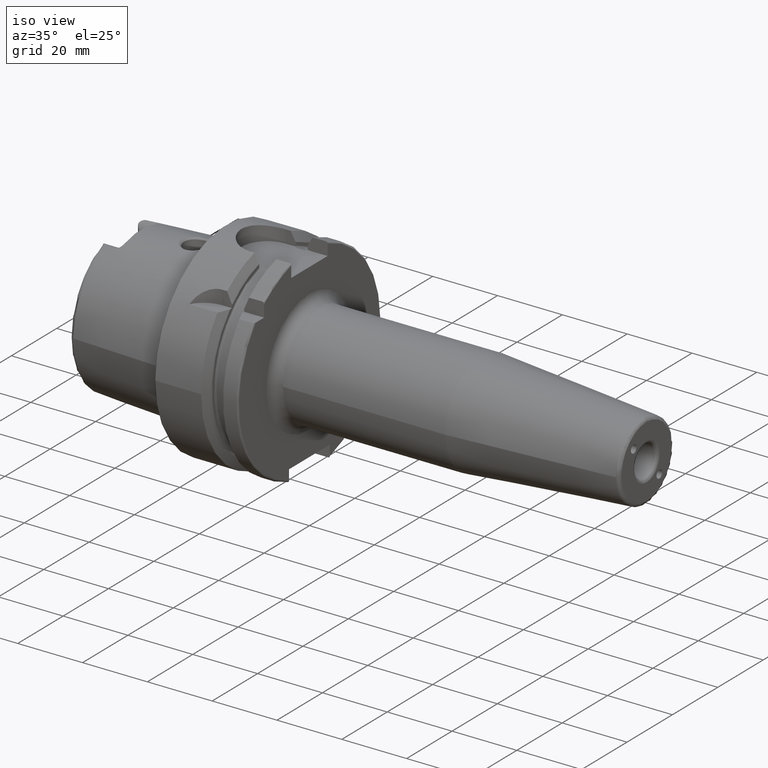
[diagram: clean part render]
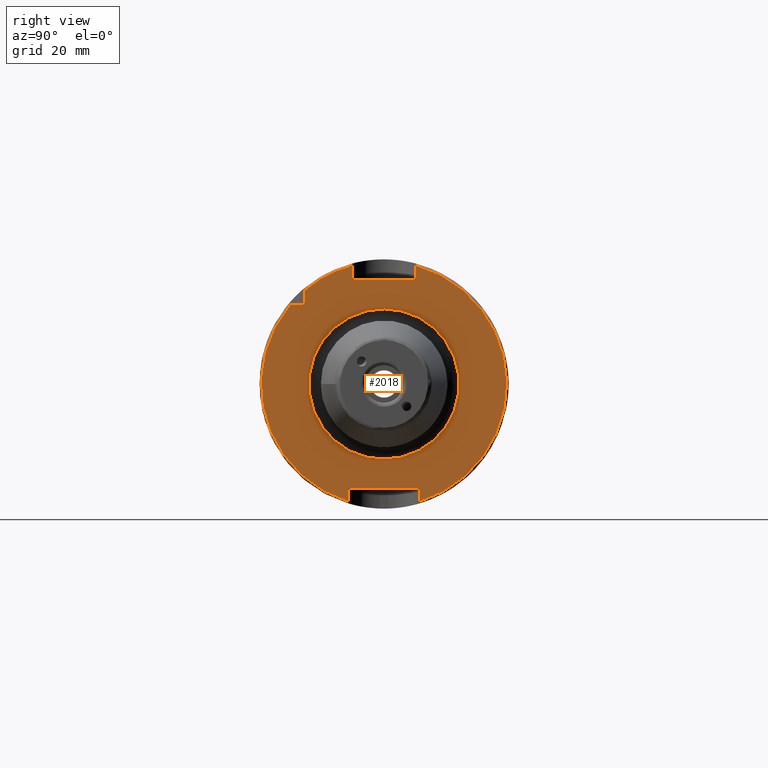
[diagram: tour spotlight — one face highlighted and labeled with its STEP entity id]
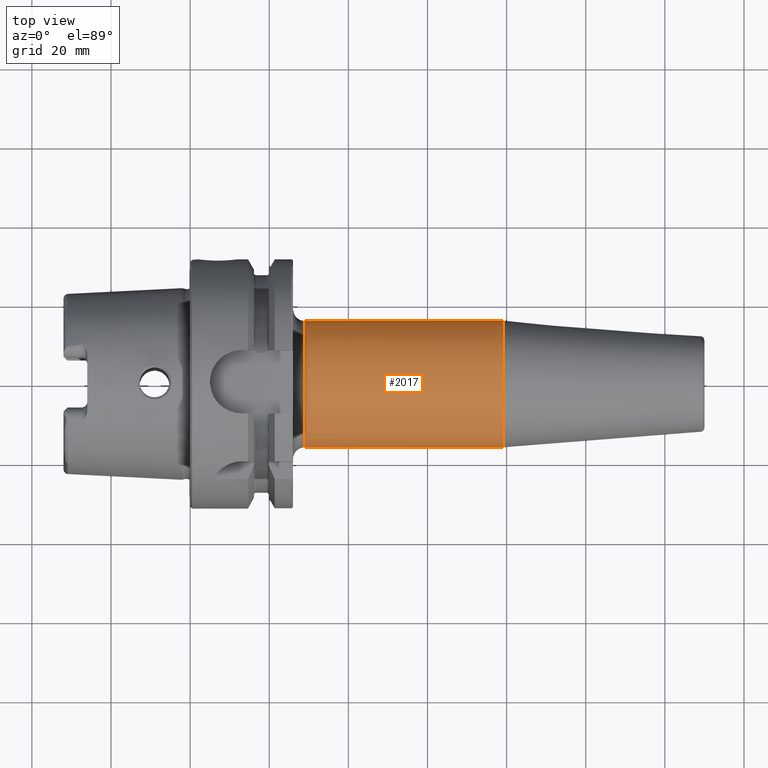
[diagram: tour spotlight — one face highlighted and labeled with its STEP entity id]
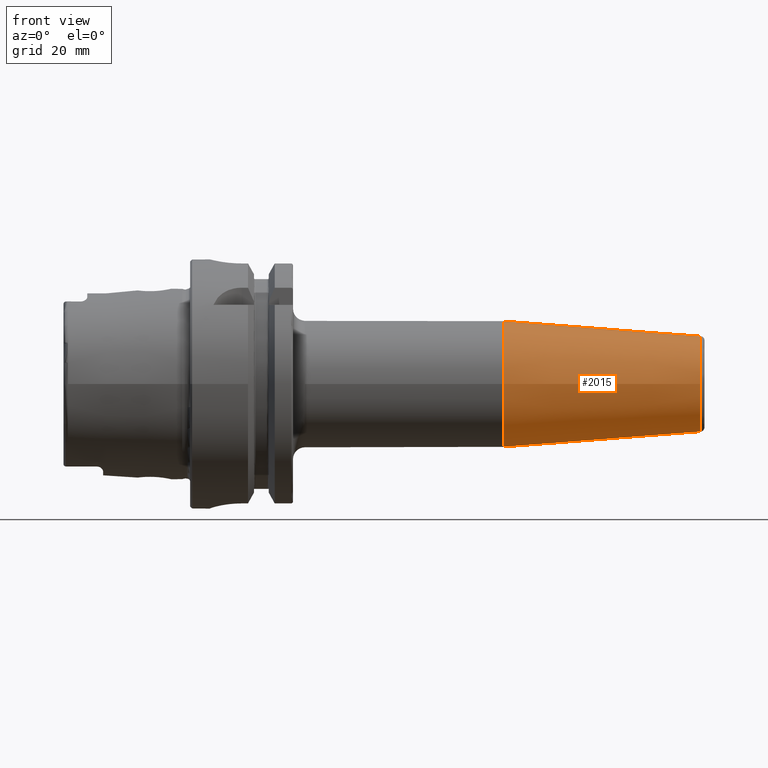
[diagram: tour spotlight — one face highlighted and labeled with its STEP entity id]
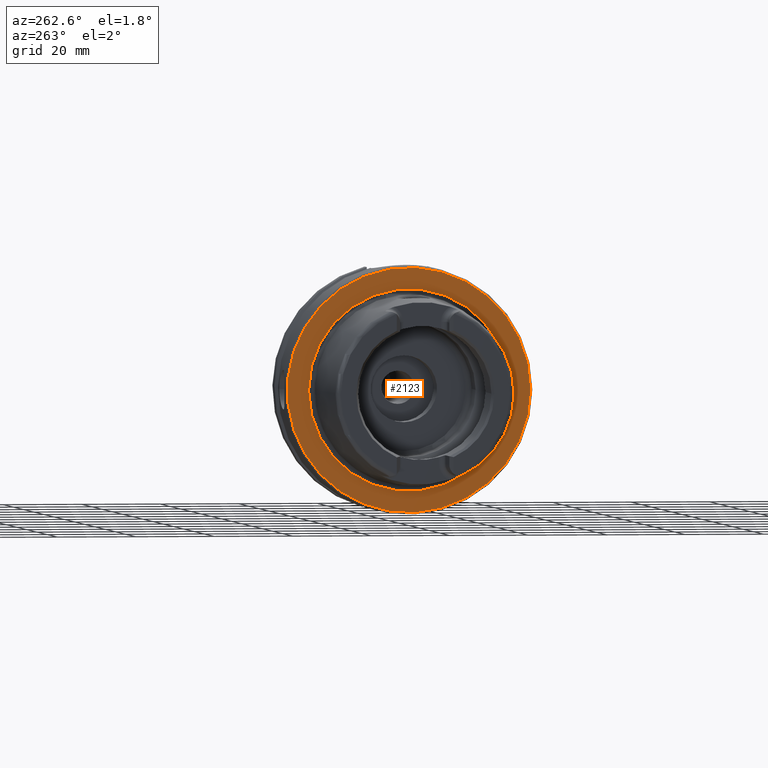
[diagram: tour spotlight — one face highlighted and labeled with its STEP entity id]
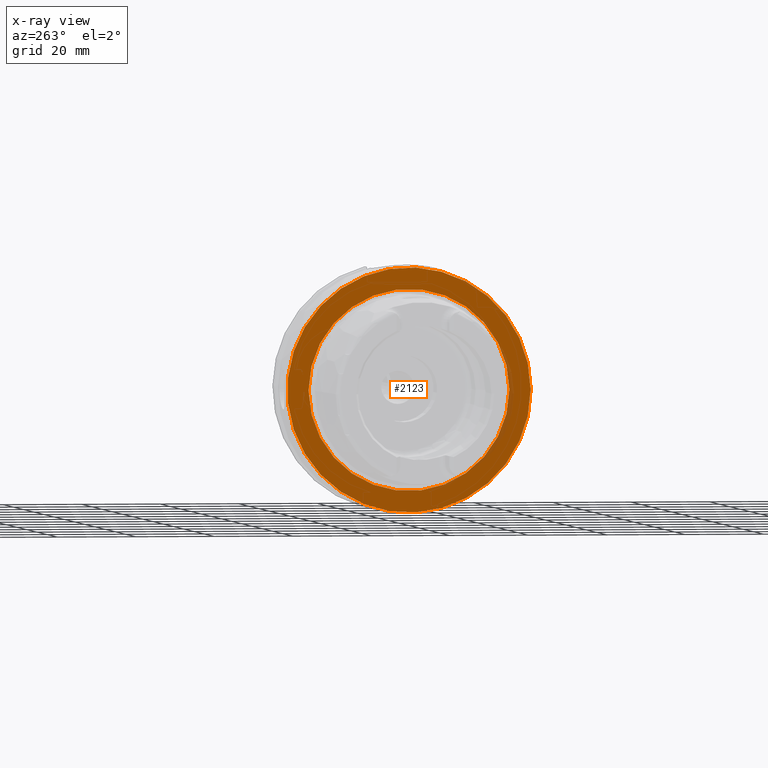
[diagram: x-ray of the same camera — body ghosted, this tour face saturated]
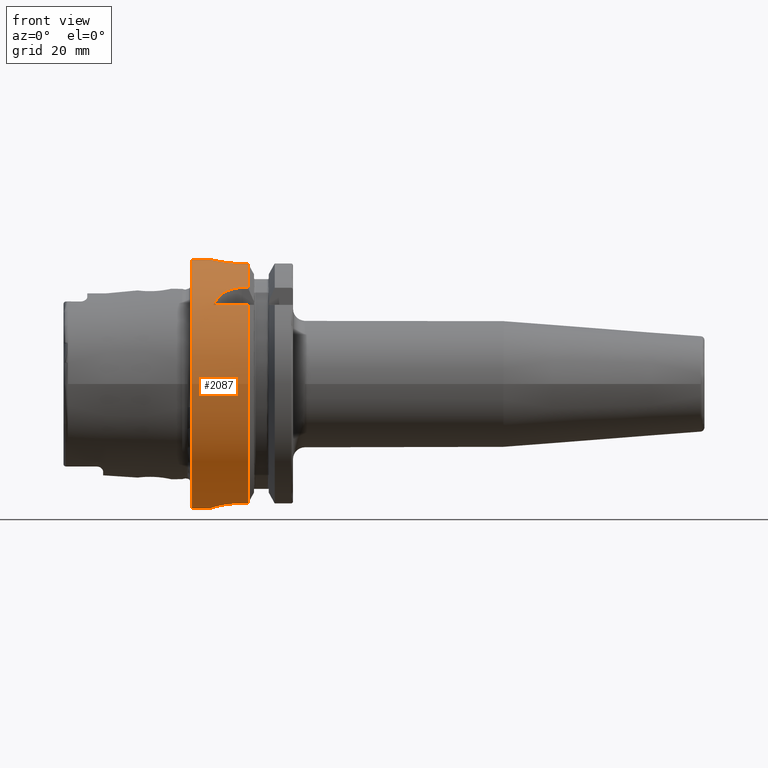
[diagram: tour spotlight — one face highlighted and labeled with its STEP entity id]
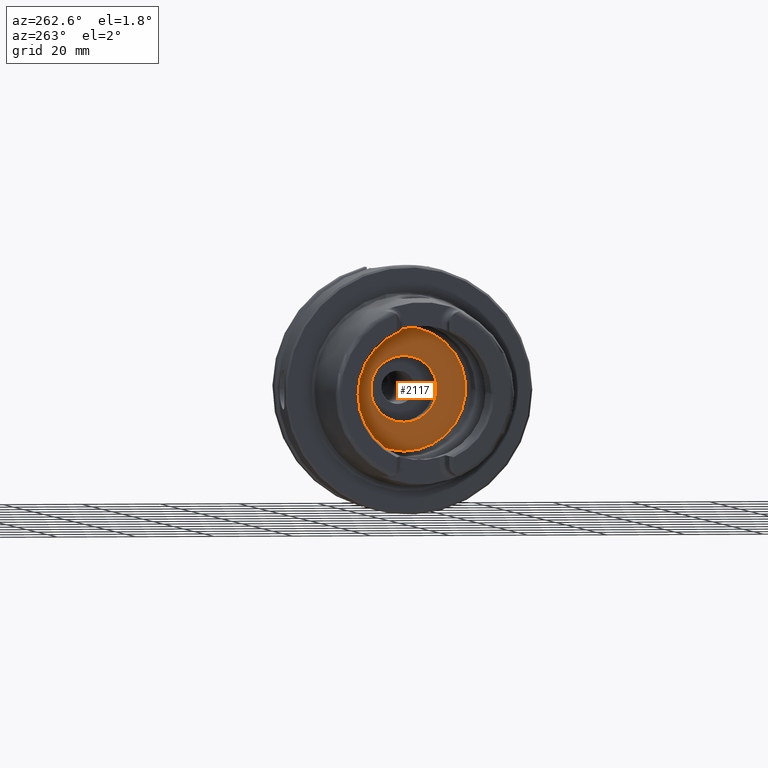
[diagram: tour spotlight — one face highlighted and labeled with its STEP entity id]
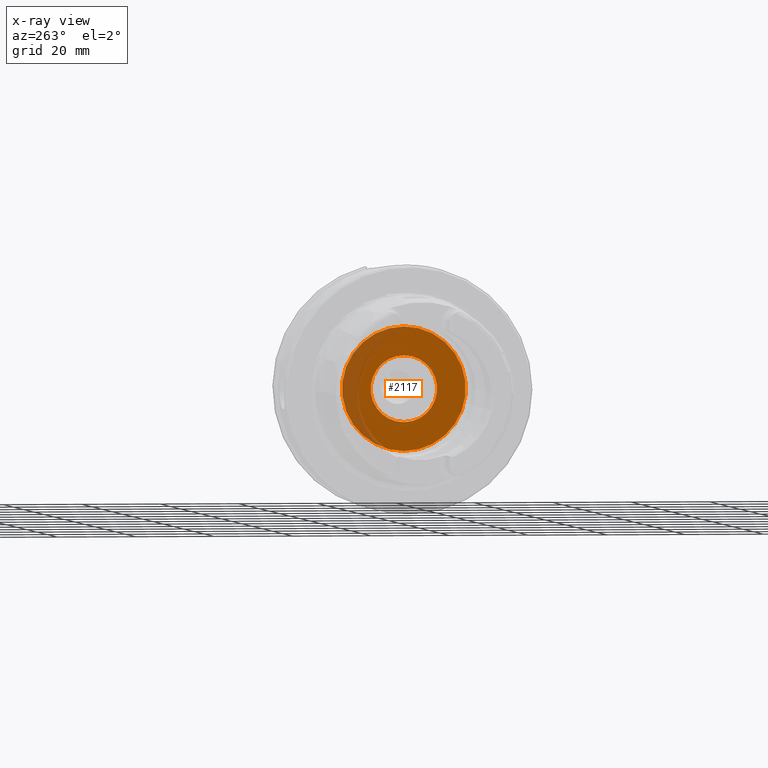
[diagram: x-ray of the same camera — body ghosted, this tour face saturated]
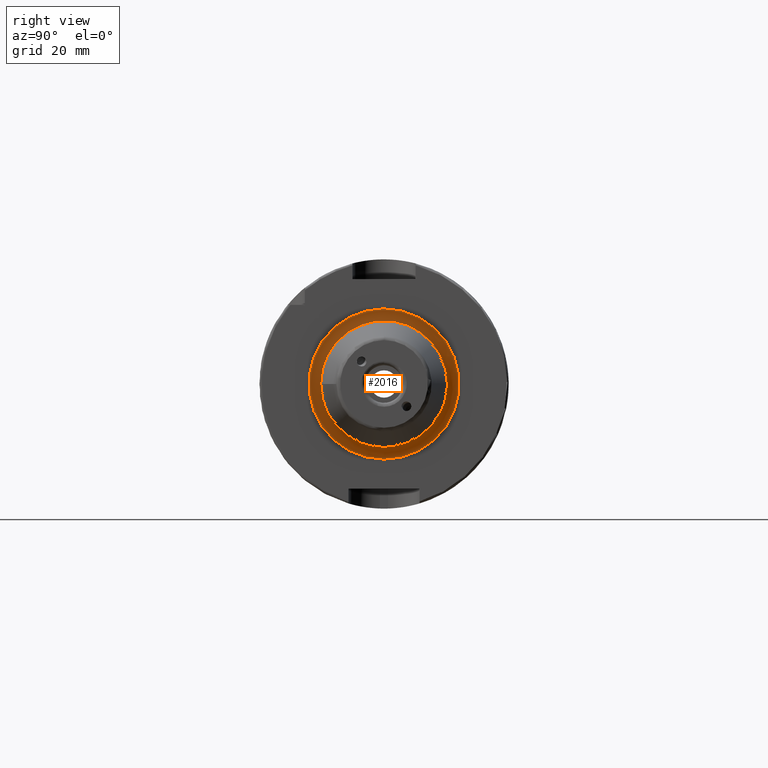
[diagram: tour spotlight — one face highlighted and labeled with its STEP entity id]
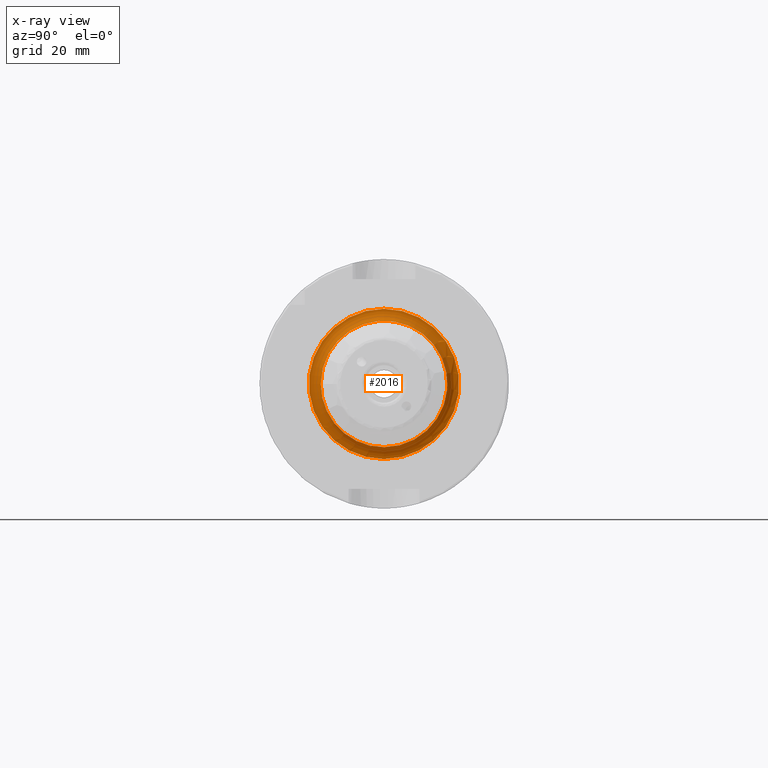
[diagram: x-ray of the same camera — body ghosted, this tour face saturated]
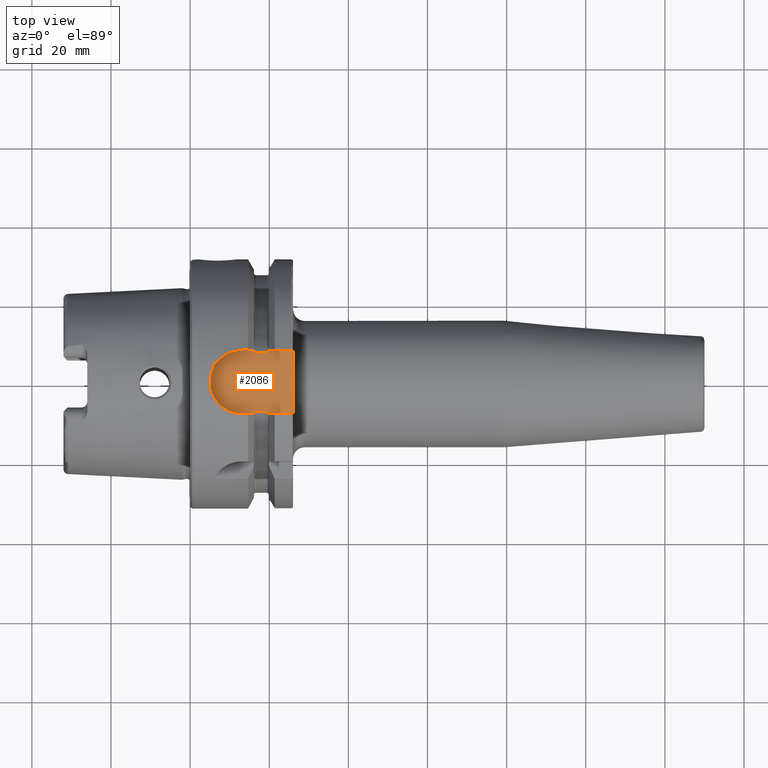
[diagram: tour spotlight — one face highlighted and labeled with its STEP entity id]
A machine part: a face-by-face anatomy tour. The part has 121 B-rep faces; the first image is the clean iso view, then the 8 largest visible faces are spotlighted one at a time (largest first), each with its STEP entity span.

Face 1 — right view, entity #2018. In plain terms, the highlighted planar face has unit normal (1, 0, 0).
Definition (entity closure, byte-faithful):
#92=FACE_BOUND('',#350,.T.);
#103=PLANE('',#2180);
#225=FACE_OUTER_BOUND('',#349,.T.);
#349=EDGE_LOOP('',(#1396,#1397,#1398,#1399,#1400,#1401,#1402,#1403,#1404,
#1405,#1406));
#350=EDGE_LOOP('',(#1407));
#476=LINE('',#3094,#586);
#477=LINE('',#3098,#587);
#478=LINE('',#3100,#588);
#479=LINE('',#3102,#589);
#480=LINE('',#3106,#590);
#481=LINE('',#3108,#591);
#482=LINE('',#3110,#592);
#483=LINE('',#3113,#593);
#586=VECTOR('',#2478,10.);
#587=VECTOR('',#2481,10.);
#588=VECTOR('',#2482,10.);
#589=VECTOR('',#2483,10.);
#590=VECTOR('',#2486,10.);
#591=VECTOR('',#2487,10.);
#592=VECTOR('',#2488,10.);
#593=VECTOR('',#2491,10.);
#703=CIRCLE('',#2177,19.);
#705=CIRCLE('',#2181,31.);
#706=CIRCLE('',#2182,31.);
#707=CIRCLE('',#2183,31.);
#834=VERTEX_POINT('',#3085);
#835=VERTEX_POINT('',#3092);
#836=VERTEX_POINT('',#3093);
#837=VERTEX_POINT('',#3095);
#838=VERTEX_POINT('',#3097);
#839=VERTEX_POINT('',#3099);
#840=VERTEX_POINT('',#3101);
#841=VERTEX_POINT('',#3103);
#842=VERTEX_POINT('',#3105);
#843=VERTEX_POINT('',#3107);
#844=VERTEX_POINT('',#3109);
#845=VERTEX_POINT('',#3111);
#1049=EDGE_CURVE('',#834,#834,#703,.T.);
#1052=EDGE_CURVE('',#835,#836,#476,.T.);
#1053=EDGE_CURVE('',#836,#837,#705,.T.);
#1054=EDGE_CURVE('',#837,#838,#477,.T.);
#1055=EDGE_CURVE('',#838,#839,#478,.T.);
#1056=EDGE_CURVE('',#839,#840,#479,.T.);
#1057=EDGE_CURVE('',#840,#841,#706,.T.);
#1058=EDGE_CURVE('',#841,#842,#480,.T.);
#1059=EDGE_CURVE('',#842,#843,#481,.T.);
#1060=EDGE_CURVE('',#843,#844,#482,.T.);
#1061=EDGE_CURVE('',#844,#845,#707,.T.);
#1062=EDGE_CURVE('',#845,#835,#483,.T.);
#1396=ORIENTED_EDGE('',*,*,#1052,.T.);
#1397=ORIENTED_EDGE('',*,*,#1053,.T.);
#1398=ORIENTED_EDGE('',*,*,#1054,.T.);
#1399=ORIENTED_EDGE('',*,*,#1055,.T.);
#1400=ORIENTED_EDGE('',*,*,#1056,.T.);
#1401=ORIENTED_EDGE('',*,*,#1057,.T.);
#1402=ORIENTED_EDGE('',*,*,#1058,.T.);
#1403=ORIENTED_EDGE('',*,*,#1059,.T.);
#1404=ORIENTED_EDGE('',*,*,#1060,.T.);
#1405=ORIENTED_EDGE('',*,*,#1061,.T.);
#1406=ORIENTED_EDGE('',*,*,#1062,.T.);
#1407=ORIENTED_EDGE('',*,*,#1049,.F.);
#2018=ADVANCED_FACE('',(#225,#92),#103,.T.);
#2177=AXIS2_PLACEMENT_3D('',#3087,#2469,#2470);
#2180=AXIS2_PLACEMENT_3D('',#3091,#2476,#2477);
#2181=AXIS2_PLACEMENT_3D('',#3096,#2479,#2480);
#2182=AXIS2_PLACEMENT_3D('',#3104,#2484,#2485);
#2183=AXIS2_PLACEMENT_3D('',#3112,#2489,#2490);
#2469=DIRECTION('center_axis',(1.,0.,0.));
#2470=DIRECTION('ref_axis',(0.,-1.,-1.22464679914735E-16));
#2476=DIRECTION('center_axis',(1.,0.,0.));
#2477=DIRECTION('ref_axis',(0.,0.,-1.));
#2478=DIRECTION('',(0.,-1.,0.));
#2479=DIRECTION('center_axis',(1.,0.,0.));
#2480=DIRECTION('ref_axis',(0.,0.,-1.));
#2481=DIRECTION('',(0.,0.,1.));
#2482=DIRECTION('',(0.,1.,0.));
#2483=DIRECTION('',(0.,0.,-1.));
#2484=DIRECTION('center_axis',(1.,0.,0.));
#2485=DIRECTION('ref_axis',(0.,0.,-1.));
#2486=DIRECTION('',(0.,0.,-1.));
#2487=DIRECTION('',(0.,-1.,0.));
#2488=DIRECTION('',(0.,0.,1.));
#2489=DIRECTION('center_axis',(1.,0.,0.));
#2490=DIRECTION('ref_axis',(0.,0.,-1.));
#2491=DIRECTION('',(0.,0.,-1.));
#3085=CARTESIAN_POINT('',(26.,-2.32682891837997E-15,-19.));
#3087=CARTESIAN_POINT('Origin',(26.,0.,0.));
#3091=CARTESIAN_POINT('Origin',(26.,0.,0.));
#3092=CARTESIAN_POINT('',(26.,-20.,20.));
#3093=CARTESIAN_POINT('',(26.,-23.685438564654,20.));
#3094=CARTESIAN_POINT('',(26.,-12.,20.));
#3095=CARTESIAN_POINT('',(26.,-9.,-29.6647939483827));
#3096=CARTESIAN_POINT('Origin',(26.,0.,0.));
#3097=CARTESIAN_POINT('',(26.,-9.,-26.5));
#3098=CARTESIAN_POINT('',(26.,-9.,-13.25));
#3099=CARTESIAN_POINT('',(26.,9.,-26.5));
#3100=CARTESIAN_POINT('',(26.,1.94289029309402E-15,-26.5));
#3101=CARTESIAN_POINT('',(26.,9.,-29.6647939483827));
#3102=CARTESIAN_POINT('',(26.,9.,-13.25));
#3103=CARTESIAN_POINT('',(26.,8.,29.9499582637439));
#3104=CARTESIAN_POINT('Origin',(26.,0.,0.));
#3105=CARTESIAN_POINT('',(26.,8.,26.5));
#3106=CARTESIAN_POINT('',(26.,8.,13.25));
#3107=CARTESIAN_POINT('',(26.,-8.,26.5));
#3108=CARTESIAN_POINT('',(26.,5.55111512312578E-16,26.5));
#3109=CARTESIAN_POINT('',(26.,-8.,29.9499582637439));
#3110=CARTESIAN_POINT('',(26.,-8.,13.25));
#3111=CARTESIAN_POINT('',(26.,-20.,23.685438564654));
#3112=CARTESIAN_POINT('Origin',(26.,0.,0.));
#3113=CARTESIAN_POINT('',(26.,-20.,10.));

Face 2 — top view, entity #2017. In plain terms, the highlighted cylindrical surface (bore or boss wall) has radius 16 mm, axis along (1, 0, 0).
Definition (entity closure, byte-faithful):
#181=CYLINDRICAL_SURFACE('',#2179,16.);
#224=FACE_OUTER_BOUND('',#348,.T.);
#348=EDGE_LOOP('',(#1391,#1392,#1393,#1394,#1395));
#475=LINE('',#3090,#585);
#585=VECTOR('',#2475,16.);
#700=CIRCLE('',#2173,16.);
#701=CIRCLE('',#2175,16.);
#704=CIRCLE('',#2178,16.);
#831=VERTEX_POINT('',#3078);
#832=VERTEX_POINT('',#3082);
#833=VERTEX_POINT('',#3083);
#1046=EDGE_CURVE('',#831,#831,#700,.T.);
#1047=EDGE_CURVE('',#832,#833,#701,.T.);
#1050=EDGE_CURVE('',#833,#832,#704,.T.);
#1051=EDGE_CURVE('',#831,#832,#475,.T.);
#1391=ORIENTED_EDGE('',*,*,#1046,.F.);
#1392=ORIENTED_EDGE('',*,*,#1051,.T.);
#1393=ORIENTED_EDGE('',*,*,#1050,.F.);
#1394=ORIENTED_EDGE('',*,*,#1047,.F.);
#1395=ORIENTED_EDGE('',*,*,#1051,.F.);
#2017=ADVANCED_FACE('',(#224),#181,.T.);
#2173=AXIS2_PLACEMENT_3D('',#3080,#2461,#2462);
#2175=AXIS2_PLACEMENT_3D('',#3084,#2465,#2466);
#2178=AXIS2_PLACEMENT_3D('',#3088,#2471,#2472);
#2179=AXIS2_PLACEMENT_3D('',#3089,#2473,#2474);
#2461=DIRECTION('center_axis',(1.,0.,0.));
#2462=DIRECTION('ref_axis',(0.,0.,-1.));
#2465=DIRECTION('center_axis',(-1.,0.,0.));
#2466=DIRECTION('ref_axis',(0.,-1.,-1.22464679914735E-16));
#2471=DIRECTION('center_axis',(-1.,0.,0.));
#2472=DIRECTION('ref_axis',(0.,-1.,-1.22464679914735E-16));
#2473=DIRECTION('center_axis',(1.,0.,0.));
#2474=DIRECTION('ref_axis',(0.,1.,0.));
#2475=DIRECTION('',(-1.,0.,0.));
#3078=CARTESIAN_POINT('',(79.1751810553015,-16.,-1.95943487863577E-15));
#3080=CARTESIAN_POINT('Origin',(79.1751810553015,0.,0.));
#3082=CARTESIAN_POINT('',(29.,-16.,-1.95943487863577E-15));
#3083=CARTESIAN_POINT('',(29.,-1.95943487863577E-15,-16.));
#3084=CARTESIAN_POINT('Origin',(29.,0.,0.));
#3088=CARTESIAN_POINT('Origin',(29.,0.,0.));
#3089=CARTESIAN_POINT('Origin',(52.5875905276507,0.,0.));
#3090=CARTESIAN_POINT('',(52.5875905276507,-16.,-1.95943487863577E-15));

Face 3 — front view, entity #2015. In plain terms, the highlighted conical surface has half-angle 4.5 deg.
Definition (entity closure, byte-faithful):
#222=FACE_OUTER_BOUND('',#346,.T.);
#346=EDGE_LOOP('',(#1381,#1382,#1383,#1384,#1385));
#474=LINE('',#3079,#584);
#584=VECTOR('',#2460,14.);
#698=CIRCLE('',#2170,12.0725268420749);
#699=CIRCLE('',#2171,12.0725268420749);
#700=CIRCLE('',#2173,16.);
#829=VERTEX_POINT('',#3072);
#830=VERTEX_POINT('',#3074);
#831=VERTEX_POINT('',#3078);
#1043=EDGE_CURVE('',#829,#830,#698,.T.);
#1044=EDGE_CURVE('',#830,#829,#699,.T.);
#1045=EDGE_CURVE('',#830,#831,#474,.T.);
#1046=EDGE_CURVE('',#831,#831,#700,.T.);
#1381=ORIENTED_EDGE('',*,*,#1044,.F.);
#1382=ORIENTED_EDGE('',*,*,#1045,.T.);
#1383=ORIENTED_EDGE('',*,*,#1046,.T.);
#1384=ORIENTED_EDGE('',*,*,#1045,.F.);
#1385=ORIENTED_EDGE('',*,*,#1043,.F.);
#1992=CONICAL_SURFACE('',#2172,14.,0.0785398163397453);
#2015=ADVANCED_FACE('',(#222),#1992,.T.);
#2170=AXIS2_PLACEMENT_3D('',#3075,#2454,#2455);
#2171=AXIS2_PLACEMENT_3D('',#3076,#2456,#2457);
#2172=AXIS2_PLACEMENT_3D('',#3077,#2458,#2459);
#2173=AXIS2_PLACEMENT_3D('',#3080,#2461,#2462);
#2454=DIRECTION('center_axis',(1.,0.,0.));
#2455=DIRECTION('ref_axis',(0.,-1.,3.06161699786838E-17));
#2456=DIRECTION('center_axis',(1.,0.,0.));
#2457=DIRECTION('ref_axis',(0.,-1.,3.06161699786838E-17));
#2458=DIRECTION('center_axis',(-1.,0.,0.));
#2459=DIRECTION('ref_axis',(0.,1.,0.));
#2460=DIRECTION('',(-0.996917333733128,-0.0784590957278454,-9.60846804471016E-18));
#2461=DIRECTION('center_axis',(1.,0.,0.));
#2462=DIRECTION('ref_axis',(0.,0.,-1.));
#3072=CARTESIAN_POINT('',(129.078459095728,-1.47845813547676E-15,12.0725268420749));
#3074=CARTESIAN_POINT('',(129.078459095728,-12.0725268420749,-1.47845813547676E-15));
#3075=CARTESIAN_POINT('Origin',(129.078459095728,0.,-1.84807266934594E-15));
#3076=CARTESIAN_POINT('Origin',(129.078459095728,0.,-1.84807266934594E-15));
#3077=CARTESIAN_POINT('Origin',(104.587590527651,0.,0.));
#3078=CARTESIAN_POINT('',(79.1751810553015,-16.,-1.95943487863577E-15));
#3079=CARTESIAN_POINT('',(104.587590527651,-14.,-1.71450551880629E-15));
#3080=CARTESIAN_POINT('Origin',(79.1751810553015,0.,0.));

Face 4 — auxiliary view, entity #2123. An x-ray twin of the same camera follows (body ghosted, this face saturated) — the face is partly hidden behind the body. In plain terms, the highlighted planar face has unit normal (-1, 0, 0).
Definition (entity closure, byte-faithful):
#101=FACE_BOUND('',#464,.T.);
#143=PLANE('',#2399);
#330=FACE_OUTER_BOUND('',#463,.T.);
#463=EDGE_LOOP('',(#1969));
#464=EDGE_LOOP('',(#1970));
#812=CIRCLE('',#2398,25.5879092835167);
#813=CIRCLE('',#2400,31.);
#1022=VERTEX_POINT('',#4495);
#1023=VERTEX_POINT('',#4499);
#1339=EDGE_CURVE('',#1022,#1022,#812,.T.);
#1340=EDGE_CURVE('',#1023,#1023,#813,.T.);
#1969=ORIENTED_EDGE('',*,*,#1340,.F.);
#1970=ORIENTED_EDGE('',*,*,#1339,.T.);
#2123=ADVANCED_FACE('',(#330,#101),#143,.T.);
#2398=AXIS2_PLACEMENT_3D('',#4497,#3012,#3013);
#2399=AXIS2_PLACEMENT_3D('',#4498,#3014,#3015);
#2400=AXIS2_PLACEMENT_3D('',#4500,#3016,#3017);
#3012=DIRECTION('center_axis',(1.,0.,0.));
#3013=DIRECTION('ref_axis',(0.,0.,-1.));
#3014=DIRECTION('center_axis',(-1.,0.,0.));
#3015=DIRECTION('ref_axis',(0.,0.,1.));
#3016=DIRECTION('center_axis',(1.,0.,0.));
#3017=DIRECTION('ref_axis',(0.,0.,-1.));
#4495=CARTESIAN_POINT('',(-3.55618312575245E-16,-25.5879092835167,-3.13361512009315E-15));
#4497=CARTESIAN_POINT('Origin',(0.,0.,0.));
#4498=CARTESIAN_POINT('Origin',(0.,31.,0.));
#4499=CARTESIAN_POINT('',(-5.89805981832114E-16,-31.,-3.7964050773568E-15));
#4500=CARTESIAN_POINT('Origin',(0.,0.,0.));

Face 5 — front view, entity #2087. In plain terms, the highlighted cylindrical surface (bore or boss wall) has radius 31.5 mm, axis along (1, 0, 0).
Definition (entity closure, byte-faithful):
#57=B_SPLINE_CURVE_WITH_KNOTS('',3,(#3852,#3853,#3854,#3855,#3856,#3857,
#3858,#3859,#3860,#3861,#3862,#3863,#3864,#3865,#3866,#3867,#3868,#3869,
#3870,#3871,#3872,#3873,#3874,#3875,#3876,#3877),.UNSPECIFIED.,.F.,.F.,
(4,2,2,2,2,2,2,2,2,2,2,2,4),(0.,0.188688694287612,0.377377388575223,0.56606194688798,
0.754746505200737,0.943431063513494,1.13211562182625,1.32080431611386,1.50949301040147,
1.69818170468909,1.8868703989767,2.07555495728945,2.26423951560221),
 .UNSPECIFIED.);
#58=B_SPLINE_CURVE_WITH_KNOTS('',3,(#3878,#3879,#3880,#3881,#3882,#3883,
#3884,#3885,#3886,#3887),.UNSPECIFIED.,.F.,.F.,(4,2,2,2,4),(2.26423951560221,
2.45292407391497,2.64160863222773,2.83029732651534,3.01898602080295),
 .UNSPECIFIED.);
#61=B_SPLINE_CURVE_WITH_KNOTS('',3,(#3944,#3945,#3946,#3947,#3948,#3949,
#3950,#3951,#3952,#3953,#3954,#3955),.UNSPECIFIED.,.F.,.F.,(4,2,2,2,2,4),
(1.1085154204615,1.31979218709236,1.52798350480179,1.73617482251122,1.90421770126337,
2.07226058001552),.UNSPECIFIED.);
#71=B_SPLINE_CURVE_WITH_KNOTS('',3,(#4124,#4125,#4126,#4127,#4128,#4129,
#4130,#4131,#4132,#4133),.UNSPECIFIED.,.F.,.F.,(4,2,2,2,4),(1.20927420824097,
1.5131742975437,1.81707438684643,2.12000449915965,2.42293461147287),
 .UNSPECIFIED.);
#74=B_SPLINE_CURVE_WITH_KNOTS('',3,(#4159,#4160,#4161,#4162,#4163,#4164,
#4165,#4166,#4167,#4168),.UNSPECIFIED.,.F.,.F.,(4,2,2,2,4),(0.,0.30293011231322,
0.605860224626439,0.90976031392917,1.2136604032319),.UNSPECIFIED.);
#84=B_SPLINE_CURVE_WITH_KNOTS('',3,(#4314,#4315,#4316,#4317,#4318,#4319,
#4320,#4321,#4322,#4323,#4324,#4325,#4326,#4327,#4328,#4329,#4330,#4331),
 .UNSPECIFIED.,.F.,.F.,(4,2,2,2,2,2,2,2,4),(0.,0.302805879979318,0.605611759958635,
0.908372461246501,1.21113316253437,1.51389386382223,1.8166545651101,2.11946044508942,
2.42226632506874),.UNSPECIFIED.);
#97=FACE_BOUND('',#424,.T.);
#202=CYLINDRICAL_SURFACE('',#2321,31.5);
#294=FACE_OUTER_BOUND('',#423,.T.);
#423=EDGE_LOOP('',(#1786,#1787,#1788,#1789,#1790,#1791,#1792,#1793,#1794,
#1795,#1796,#1797,#1798,#1799,#1800,#1801,#1802,#1803));
#424=EDGE_LOOP('',(#1804,#1805));
#522=LINE('',#3919,#632);
#527=LINE('',#3964,#637);
#545=LINE('',#4141,#655);
#546=LINE('',#4145,#656);
#558=LINE('',#4308,#668);
#561=LINE('',#4338,#671);
#563=LINE('',#4344,#673);
#632=VECTOR('',#2674,10.);
#637=VECTOR('',#2685,10.);
#655=VECTOR('',#2749,10.);
#656=VECTOR('',#2752,10.);
#668=VECTOR('',#2830,10.);
#671=VECTOR('',#2841,10.);
#673=VECTOR('',#2849,31.5);
#747=CIRCLE('',#2264,31.5);
#748=CIRCLE('',#2265,31.5);
#756=CIRCLE('',#2285,31.5);
#757=CIRCLE('',#2287,31.5);
#771=CIRCLE('',#2322,31.5);
#772=CIRCLE('',#2323,31.5);
#923=VERTEX_POINT('',#3849);
#924=VERTEX_POINT('',#3851);
#932=VERTEX_POINT('',#3916);
#933=VERTEX_POINT('',#3918);
#937=VERTEX_POINT('',#3943);
#939=VERTEX_POINT('',#3960);
#944=VERTEX_POINT('',#3976);
#945=VERTEX_POINT('',#3978);
#970=VERTEX_POINT('',#4122);
#971=VERTEX_POINT('',#4123);
#972=VERTEX_POINT('',#4143);
#973=VERTEX_POINT('',#4144);
#976=VERTEX_POINT('',#4158);
#977=VERTEX_POINT('',#4173);
#993=VERTEX_POINT('',#4305);
#994=VERTEX_POINT('',#4307);
#995=VERTEX_POINT('',#4313);
#997=VERTEX_POINT('',#4343);
#1167=EDGE_CURVE('',#924,#923,#57,.T.);
#1168=EDGE_CURVE('',#923,#924,#58,.T.);
#1177=EDGE_CURVE('',#933,#932,#522,.T.);
#1183=EDGE_CURVE('',#932,#937,#61,.T.);
#1187=EDGE_CURVE('',#937,#939,#527,.T.);
#1193=EDGE_CURVE('',#933,#944,#747,.T.);
#1194=EDGE_CURVE('',#944,#945,#748,.T.);
#1228=EDGE_CURVE('',#970,#971,#71,.T.);
#1232=EDGE_CURVE('',#971,#945,#545,.T.);
#1233=EDGE_CURVE('',#972,#973,#546,.T.);
#1238=EDGE_CURVE('',#973,#976,#74,.T.);
#1240=EDGE_CURVE('',#976,#970,#756,.T.);
#1241=EDGE_CURVE('',#972,#977,#757,.T.);
#1273=EDGE_CURVE('',#994,#993,#558,.T.);
#1275=EDGE_CURVE('',#993,#995,#84,.T.);
#1279=EDGE_CURVE('',#995,#977,#561,.T.);
#1281=EDGE_CURVE('',#994,#939,#771,.T.);
#1282=EDGE_CURVE('',#944,#997,#563,.T.);
#1283=EDGE_CURVE('',#997,#997,#772,.T.);
#1786=ORIENTED_EDGE('',*,*,#1187,.T.);
#1787=ORIENTED_EDGE('',*,*,#1281,.F.);
#1788=ORIENTED_EDGE('',*,*,#1273,.T.);
#1789=ORIENTED_EDGE('',*,*,#1275,.T.);
#1790=ORIENTED_EDGE('',*,*,#1279,.T.);
#1791=ORIENTED_EDGE('',*,*,#1241,.F.);
#1792=ORIENTED_EDGE('',*,*,#1233,.T.);
#1793=ORIENTED_EDGE('',*,*,#1238,.T.);
#1794=ORIENTED_EDGE('',*,*,#1240,.T.);
#1795=ORIENTED_EDGE('',*,*,#1228,.T.);
#1796=ORIENTED_EDGE('',*,*,#1232,.T.);
#1797=ORIENTED_EDGE('',*,*,#1194,.F.);
#1798=ORIENTED_EDGE('',*,*,#1282,.T.);
#1799=ORIENTED_EDGE('',*,*,#1283,.T.);
#1800=ORIENTED_EDGE('',*,*,#1282,.F.);
#1801=ORIENTED_EDGE('',*,*,#1193,.F.);
#1802=ORIENTED_EDGE('',*,*,#1177,.T.);
#1803=ORIENTED_EDGE('',*,*,#1183,.T.);
#1804=ORIENTED_EDGE('',*,*,#1167,.T.);
#1805=ORIENTED_EDGE('',*,*,#1168,.T.);
#2087=ADVANCED_FACE('',(#294,#97),#202,.T.);
#2264=AXIS2_PLACEMENT_3D('',#3977,#2698,#2699);
#2265=AXIS2_PLACEMENT_3D('',#3979,#2700,#2701);
#2285=AXIS2_PLACEMENT_3D('',#4171,#2760,#2761);
#2287=AXIS2_PLACEMENT_3D('',#4174,#2764,#2765);
#2321=AXIS2_PLACEMENT_3D('',#4341,#2845,#2846);
#2322=AXIS2_PLACEMENT_3D('',#4342,#2847,#2848);
#2323=AXIS2_PLACEMENT_3D('',#4345,#2850,#2851);
#2674=DIRECTION('',(-1.,0.,0.));
#2685=DIRECTION('',(1.,0.,0.));
#2698=DIRECTION('center_axis',(1.,0.,0.));
#2699=DIRECTION('ref_axis',(0.,0.,-1.));
#2700=DIRECTION('center_axis',(1.,0.,0.));
#2701=DIRECTION('ref_axis',(0.,0.,-1.));
#2749=DIRECTION('',(1.,0.,0.));
#2752=DIRECTION('',(-1.,0.,0.));
#2760=DIRECTION('center_axis',(-1.,0.,0.));
#2761=DIRECTION('ref_axis',(0.,1.,0.));
#2764=DIRECTION('center_axis',(1.,0.,0.));
#2765=DIRECTION('ref_axis',(0.,0.,-1.));
#2830=DIRECTION('',(-1.,0.,0.));
#2841=DIRECTION('',(1.,0.,0.));
#2845=DIRECTION('center_axis',(1.,0.,0.));
#2846=DIRECTION('ref_axis',(0.,1.,0.));
#2847=DIRECTION('center_axis',(1.,0.,0.));
#2848=DIRECTION('ref_axis',(0.,0.,-1.));
#2849=DIRECTION('',(-1.,0.,0.));
#2850=DIRECTION('center_axis',(1.,0.,0.));
#2851=DIRECTION('ref_axis',(0.,0.,-1.));
#3849=CARTESIAN_POINT('',(12.,31.5,-6.12323399573677E-16));
#3851=CARTESIAN_POINT('',(7.,31.100643080168,5.));
#3852=CARTESIAN_POINT('Ctrl Pts',(7.,31.100643080168,5.));
#3853=CARTESIAN_POINT('Ctrl Pts',(6.37103768570796,31.100643080168,5.));
#3854=CARTESIAN_POINT('Ctrl Pts',(5.70089281579202,31.1216953112949,4.87408354368814));
#3855=CARTESIAN_POINT('Ctrl Pts',(4.46931934300962,31.1973810209855,4.36348784122736));
#3856=CARTESIAN_POINT('Ctrl Pts',(3.90779781350673,31.2508828501623,3.97886562537221));
#3857=CARTESIAN_POINT('Ctrl Pts',(3.021144092268,31.3510329557602,3.09221190413348));
#3858=CARTESIAN_POINT('Ctrl Pts',(2.63651425348544,31.4042391414288,2.5306861925578));
#3859=CARTESIAN_POINT('Ctrl Pts',(2.12591301120586,31.4792463697936,1.29909839144709));
#3860=CARTESIAN_POINT('Ctrl Pts',(2.,31.5,0.62894852770919));
#3861=CARTESIAN_POINT('Ctrl Pts',(2.,31.5,-0.62894852770919));
#3862=CARTESIAN_POINT('Ctrl Pts',(2.12591301120586,31.4792463697936,-1.29909839144709));
#3863=CARTESIAN_POINT('Ctrl Pts',(2.63651425348544,31.4042391414288,-2.5306861925578));
#3864=CARTESIAN_POINT('Ctrl Pts',(3.021144092268,31.3510329557602,-3.09221190413348));
#3865=CARTESIAN_POINT('Ctrl Pts',(3.90779781350673,31.2508828501623,-3.97886562537221));
#3866=CARTESIAN_POINT('Ctrl Pts',(4.46931934300962,31.1973810209855,-4.36348784122736));
#3867=CARTESIAN_POINT('Ctrl Pts',(5.70089281579202,31.1216953112949,-4.87408354368814));
#3868=CARTESIAN_POINT('Ctrl Pts',(6.37103768570796,31.100643080168,-5.));
#3869=CARTESIAN_POINT('Ctrl Pts',(7.62896231429204,31.100643080168,-5.));
#3870=CARTESIAN_POINT('Ctrl Pts',(8.29910718420798,31.1216953112949,-4.87408354368814));
#3871=CARTESIAN_POINT('Ctrl Pts',(9.53068065699038,31.1973810209855,-4.36348784122736));
#3872=CARTESIAN_POINT('Ctrl Pts',(10.0922021864933,31.2508828501623,-3.97886562537221));
#3873=CARTESIAN_POINT('Ctrl Pts',(10.978855907732,31.3510329557602,-3.09221190413348));
#3874=CARTESIAN_POINT('Ctrl Pts',(11.3634857465146,31.4042391414288,-2.53068619255779));
#3875=CARTESIAN_POINT('Ctrl Pts',(11.8740869887941,31.4792463697936,-1.29909839144708));
#3876=CARTESIAN_POINT('Ctrl Pts',(12.,31.5,-0.62894852770919));
#3877=CARTESIAN_POINT('Ctrl Pts',(12.,31.5,-4.16333634234434E-16));
#3878=CARTESIAN_POINT('Ctrl Pts',(12.,31.5,-1.11022302462516E-15));
#3879=CARTESIAN_POINT('Ctrl Pts',(12.,31.5,0.628948527709188));
#3880=CARTESIAN_POINT('Ctrl Pts',(11.8740869887941,31.4792463697936,1.29909839144708));
#3881=CARTESIAN_POINT('Ctrl Pts',(11.3634857465146,31.4042391414288,2.53068619255779));
#3882=CARTESIAN_POINT('Ctrl Pts',(10.978855907732,31.3510329557602,3.09221190413348));
#3883=CARTESIAN_POINT('Ctrl Pts',(10.0922021864933,31.2508828501623,3.97886562537221));
#3884=CARTESIAN_POINT('Ctrl Pts',(9.53068065699038,31.1973810209855,4.36348784122736));
#3885=CARTESIAN_POINT('Ctrl Pts',(8.29910718420798,31.1216953112949,4.87408354368814));
#3886=CARTESIAN_POINT('Ctrl Pts',(7.62896231429204,31.100643080168,5.));
#3887=CARTESIAN_POINT('Ctrl Pts',(7.,31.100643080168,5.));
#3916=CARTESIAN_POINT('',(5.88828609634419,-24.3361870472759,20.));
#3918=CARTESIAN_POINT('',(14.6225009252407,-24.3361870472759,20.));
#3919=CARTESIAN_POINT('',(7.56125046262034,-24.3361870472759,20.));
#3943=CARTESIAN_POINT('',(13.,-20.,24.3361870472759));
#3944=CARTESIAN_POINT('Ctrl Pts',(5.88828609634419,-24.3361870472759,20.));
#3945=CARTESIAN_POINT('Ctrl Pts',(6.11069532820048,-23.9044753723342,20.5253108035937));
#3946=CARTESIAN_POINT('Ctrl Pts',(6.38325999044306,-23.4713523250807,21.0173865932788));
#3947=CARTESIAN_POINT('Ctrl Pts',(7.044898076458,-22.6317364276543,21.9186738868096));
#3948=CARTESIAN_POINT('Ctrl Pts',(7.46714468561685,-22.1861072682036,22.3682920878559));
#3949=CARTESIAN_POINT('Ctrl Pts',(8.46725531403812,-21.3767026700071,23.143042657319));
#3950=CARTESIAN_POINT('Ctrl Pts',(9.04646427720221,-21.0147449478223,23.4683362269255));
#3951=CARTESIAN_POINT('Ctrl Pts',(10.1145001432702,-20.5200081116516,23.9011603796022));
#3952=CARTESIAN_POINT('Ctrl Pts',(10.670823971716,-20.3234249831704,24.0673462447194));
#3953=CARTESIAN_POINT('Ctrl Pts',(11.8334528721306,-20.063121855676,24.2847667849476));
#3954=CARTESIAN_POINT('Ctrl Pts',(12.4398570708262,-20.,24.3361870472759));
#3955=CARTESIAN_POINT('Ctrl Pts',(13.,-20.,24.3361870472759));
#3960=CARTESIAN_POINT('',(14.6225009252407,-20.,24.3361870472759));
#3964=CARTESIAN_POINT('',(7.56125046262035,-20.,24.3361870472759));
#3976=CARTESIAN_POINT('',(14.6225009252407,-31.5,-3.85763741731416E-15));
#3977=CARTESIAN_POINT('Origin',(14.6225009252407,0.,0.));
#3978=CARTESIAN_POINT('',(14.6225009252407,-9.,-30.1869176962472));
#3979=CARTESIAN_POINT('Origin',(14.6225009252407,0.,0.));
#4122=CARTESIAN_POINT('',(5.,-0.999999999999999,-31.4841229828623));
#4123=CARTESIAN_POINT('',(13.,-9.,-30.1869176962472));
#4124=CARTESIAN_POINT('Ctrl Pts',(5.,-0.999999999999997,-31.4841229828623));
#4125=CARTESIAN_POINT('Ctrl Pts',(5.,-2.01248971281587,-31.4519642432536));
#4126=CARTESIAN_POINT('Ctrl Pts',(5.2037733306458,-3.08756640398171,-31.3640631381934));
#4127=CARTESIAN_POINT('Ctrl Pts',(6.02370102555041,-5.05836608044729,-31.1070804719497));
#4128=CARTESIAN_POINT('Ctrl Pts',(6.63955745341061,-5.95454409907418,-30.9405445582004));
#4129=CARTESIAN_POINT('Ctrl Pts',(8.05472493283182,-7.36715009628369,-30.6348764237341));
#4130=CARTESIAN_POINT('Ctrl Pts',(8.9496642215883,-7.98063403850821,-30.4752177477269));
#4131=CARTESIAN_POINT('Ctrl Pts',(10.9171740660538,-8.79719825889174,-30.2496070227108));
#4132=CARTESIAN_POINT('Ctrl Pts',(11.9902329589559,-9.,-30.1869176962472));
#4133=CARTESIAN_POINT('Ctrl Pts',(13.,-9.,-30.1869176962472));
#4141=CARTESIAN_POINT('',(7.56125046262035,-8.99999999999999,-30.1869176962472));
#4143=CARTESIAN_POINT('',(14.6225009252407,9.,-30.1869176962472));
#4144=CARTESIAN_POINT('',(13.,9.00000000000001,-30.1869176962472));
#4145=CARTESIAN_POINT('',(7.56125046262034,9.00000000000001,-30.1869176962472));
#4158=CARTESIAN_POINT('',(5.,1.,-31.4841229828623));
#4159=CARTESIAN_POINT('Ctrl Pts',(13.,9.00000000000001,-30.1869176962472));
#4160=CARTESIAN_POINT('Ctrl Pts',(11.9902329589559,9.00000000000001,-30.1869176962472));
#4161=CARTESIAN_POINT('Ctrl Pts',(10.9171740660538,8.79719825889175,-30.2496070227108));
#4162=CARTESIAN_POINT('Ctrl Pts',(8.9496642215883,7.98063403850822,-30.4752177477269));
#4163=CARTESIAN_POINT('Ctrl Pts',(8.05472493283182,7.3671500962837,-30.6348764237341));
#4164=CARTESIAN_POINT('Ctrl Pts',(6.63955745341061,5.95454409907419,-30.9405445582004));
#4165=CARTESIAN_POINT('Ctrl Pts',(6.02370102555041,5.0583660804473,-31.1070804719497));
#4166=CARTESIAN_POINT('Ctrl Pts',(5.2037733306458,3.08756640398172,-31.3640631381934));
#4167=CARTESIAN_POINT('Ctrl Pts',(5.,2.01248971281588,-31.4519642432536));
#4168=CARTESIAN_POINT('Ctrl Pts',(5.,1.00000000000001,-31.4841229828623));
#4171=CARTESIAN_POINT('Origin',(5.,0.,0.));
#4173=CARTESIAN_POINT('',(14.6225009252407,8.,30.4671954731642));
#4174=CARTESIAN_POINT('Origin',(14.6225009252407,0.,0.));
#4305=CARTESIAN_POINT('',(13.,-8.,30.4671954731642));
#4307=CARTESIAN_POINT('',(14.6225009252407,-8.,30.4671954731642));
#4308=CARTESIAN_POINT('',(7.56125046262034,-8.,30.4671954731642));
#4313=CARTESIAN_POINT('',(13.,8.,30.4671954731642));
#4314=CARTESIAN_POINT('Ctrl Pts',(13.,-8.,30.4671954731643));
#4315=CARTESIAN_POINT('Ctrl Pts',(11.9906470667356,-8.,30.4671954731643));
#4316=CARTESIAN_POINT('Ctrl Pts',(10.9172075930168,-7.79737202490167,30.5225803085525));
#4317=CARTESIAN_POINT('Ctrl Pts',(8.94758399331801,-6.97961067526075,30.719895002943));
#4318=CARTESIAN_POINT('Ctrl Pts',(8.05099322370438,-6.36470172268915,30.8586830127239));
#4319=CARTESIAN_POINT('Ctrl Pts',(6.63540388828045,-4.94911238726521,31.1170994373341));
#4320=CARTESIAN_POINT('Ctrl Pts',(6.02041263015313,-4.05247770930662,31.2539072689014));
#4321=CARTESIAN_POINT('Ctrl Pts',(5.20259114887399,-2.08269813865027,31.4466478906396));
#4322=CARTESIAN_POINT('Ctrl Pts',(5.,-1.00920233762622,31.5));
#4323=CARTESIAN_POINT('Ctrl Pts',(5.,1.00920233762622,31.5));
#4324=CARTESIAN_POINT('Ctrl Pts',(5.20259114887399,2.08269813865027,31.4466478906396));
#4325=CARTESIAN_POINT('Ctrl Pts',(6.02041263015313,4.05247770930662,31.2539072689014));
#4326=CARTESIAN_POINT('Ctrl Pts',(6.63540388828045,4.94911238726521,31.1170994373341));
#4327=CARTESIAN_POINT('Ctrl Pts',(8.05099322370439,6.36470172268915,30.8586830127239));
#4328=CARTESIAN_POINT('Ctrl Pts',(8.94758399331801,6.97961067526075,30.719895002943));
#4329=CARTESIAN_POINT('Ctrl Pts',(10.9172075930168,7.79737202490167,30.5225803085525));
#4330=CARTESIAN_POINT('Ctrl Pts',(11.9906470667356,8.,30.4671954731643));
#4331=CARTESIAN_POINT('Ctrl Pts',(13.,8.,30.4671954731643));
#4338=CARTESIAN_POINT('',(7.56125046262035,8.,30.4671954731642));
#4341=CARTESIAN_POINT('Origin',(7.56125046262034,0.,0.));
#4342=CARTESIAN_POINT('Origin',(14.6225009252407,0.,0.));
#4343=CARTESIAN_POINT('',(0.5,-31.5,-3.85763741731416E-15));
#4344=CARTESIAN_POINT('',(7.56125046262034,-31.5,-3.85763741731416E-15));
#4345=CARTESIAN_POINT('Origin',(0.5,0.,0.));

Face 6 — auxiliary view, entity #2117. An x-ray twin of the same camera follows (body ghosted, this face saturated) — the face is partly hidden behind the body. In plain terms, the highlighted planar face has unit normal (1, 0, 0).
Definition (entity closure, byte-faithful):
#100=FACE_BOUND('',#457,.T.);
#142=PLANE('',#2383);
#324=FACE_OUTER_BOUND('',#456,.T.);
#456=EDGE_LOOP('',(#1939));
#457=EDGE_LOOP('',(#1940));
#796=CIRCLE('',#2372,8.458734);
#803=CIRCLE('',#2384,15.75);
#1009=VERTEX_POINT('',#4452);
#1015=VERTEX_POINT('',#4472);
#1318=EDGE_CURVE('',#1009,#1009,#796,.T.);
#1327=EDGE_CURVE('',#1015,#1015,#803,.T.);
#1939=ORIENTED_EDGE('',*,*,#1327,.T.);
#1940=ORIENTED_EDGE('',*,*,#1318,.T.);
#2117=ADVANCED_FACE('',(#324,#100),#142,.F.);
#2372=AXIS2_PLACEMENT_3D('',#4453,#2955,#2956);
#2383=AXIS2_PLACEMENT_3D('',#4471,#2979,#2980);
#2384=AXIS2_PLACEMENT_3D('',#4473,#2981,#2982);
#2955=DIRECTION('center_axis',(1.,0.,0.));
#2956=DIRECTION('ref_axis',(0.,0.,1.));
#2979=DIRECTION('center_axis',(1.,0.,0.));
#2980=DIRECTION('ref_axis',(0.,0.,-1.));
#2981=DIRECTION('center_axis',(-1.,0.,0.));
#2982=DIRECTION('ref_axis',(0.,0.,1.));
#4452=CARTESIAN_POINT('',(10.,-1.03589615179389E-15,-8.458734));
#4453=CARTESIAN_POINT('Origin',(10.,0.,0.));
#4471=CARTESIAN_POINT('Origin',(10.,15.75,0.));
#4472=CARTESIAN_POINT('',(10.,-1.92881870865708E-15,-15.75));
#4473=CARTESIAN_POINT('Origin',(10.,0.,0.));

Face 7 — right view, entity #2016. An x-ray twin of the same camera follows (body ghosted, this face saturated) — the face is partly hidden behind the body. In plain terms, the highlighted toroidal blend (fillet) surface has major radius 19 mm and minor (blend) radius 3 mm.
Definition (entity closure, byte-faithful):
#146=TOROIDAL_SURFACE('',#2174,19.,3.);
#223=FACE_OUTER_BOUND('',#347,.T.);
#347=EDGE_LOOP('',(#1386,#1387,#1388,#1389,#1390));
#701=CIRCLE('',#2175,16.);
#702=CIRCLE('',#2176,3.);
#703=CIRCLE('',#2177,19.);
#704=CIRCLE('',#2178,16.);
#832=VERTEX_POINT('',#3082);
#833=VERTEX_POINT('',#3083);
#834=VERTEX_POINT('',#3085);
#1047=EDGE_CURVE('',#832,#833,#701,.T.);
#1048=EDGE_CURVE('',#833,#834,#702,.T.);
#1049=EDGE_CURVE('',#834,#834,#703,.T.);
#1050=EDGE_CURVE('',#833,#832,#704,.T.);
#1386=ORIENTED_EDGE('',*,*,#1047,.T.);
#1387=ORIENTED_EDGE('',*,*,#1048,.T.);
#1388=ORIENTED_EDGE('',*,*,#1049,.T.);
#1389=ORIENTED_EDGE('',*,*,#1048,.F.);
#1390=ORIENTED_EDGE('',*,*,#1050,.T.);
#2016=ADVANCED_FACE('',(#223),#146,.F.);
#2174=AXIS2_PLACEMENT_3D('',#3081,#2463,#2464);
#2175=AXIS2_PLACEMENT_3D('',#3084,#2465,#2466);
#2176=AXIS2_PLACEMENT_3D('',#3086,#2467,#2468);
#2177=AXIS2_PLACEMENT_3D('',#3087,#2469,#2470);
#2178=AXIS2_PLACEMENT_3D('',#3088,#2471,#2472);
#2463=DIRECTION('center_axis',(-1.,0.,0.));
#2464=DIRECTION('ref_axis',(0.,0.,1.));
#2465=DIRECTION('center_axis',(-1.,0.,0.));
#2466=DIRECTION('ref_axis',(0.,-1.,-1.22464679914735E-16));
#2467=DIRECTION('center_axis',(0.,-1.,1.22464679914735E-16));
#2468=DIRECTION('ref_axis',(0.,-1.22464679914735E-16,-1.));
#2469=DIRECTION('center_axis',(1.,0.,0.));
#2470=DIRECTION('ref_axis',(0.,-1.,-1.22464679914735E-16));
#2471=DIRECTION('center_axis',(-1.,0.,0.));
#2472=DIRECTION('ref_axis',(0.,-1.,-1.22464679914735E-16));
#3081=CARTESIAN_POINT('Origin',(29.,0.,0.));
#3082=CARTESIAN_POINT('',(29.,-16.,-1.95943487863577E-15));
#3083=CARTESIAN_POINT('',(29.,-1.95943487863577E-15,-16.));
#3084=CARTESIAN_POINT('Origin',(29.,0.,0.));
#3085=CARTESIAN_POINT('',(26.,-2.32682891837997E-15,-19.));
#3086=CARTESIAN_POINT('Origin',(29.,-2.32682891837997E-15,-19.));
#3087=CARTESIAN_POINT('Origin',(26.,0.,0.));
#3088=CARTESIAN_POINT('Origin',(29.,0.,0.));

Face 8 — top view, entity #2086. In plain terms, the highlighted planar face has unit normal (0, 0, 1).
Definition (entity closure, byte-faithful):
#76=B_SPLINE_CURVE_WITH_KNOTS('',3,(#4193,#4194,#4195,#4196,#4197,#4198,
#4199,#4200,#4201,#4202),.UNSPECIFIED.,.F.,.F.,(4,2,2,2,4),(0.252714277572707,
0.289228035148658,0.316691561230897,0.323545183976989,0.328785692776271),
 .UNSPECIFIED.);
#77=B_SPLINE_CURVE_WITH_KNOTS('',3,(#4208,#4209,#4210,#4211,#4212,#4213,
#4214,#4215,#4216,#4217),.UNSPECIFIED.,.F.,.F.,(4,2,2,2,4),(0.328785692776271,
0.334026201575553,0.340879824321645,0.368343350403883,0.404857107979834),
 .UNSPECIFIED.);
#80=B_SPLINE_CURVE_WITH_KNOTS('',3,(#4262,#4263,#4264,#4265,#4266,#4267,
#4268,#4269,#4270,#4271),.UNSPECIFIED.,.F.,.F.,(4,2,2,2,4),(0.32878569277627,
0.334026201575551,0.340879824321645,0.368343350403882,0.404857107979833),
 .UNSPECIFIED.);
#83=B_SPLINE_CURVE_WITH_KNOTS('',3,(#4288,#4289,#4290,#4291,#4292,#4293,
#4294,#4295,#4296,#4297),.UNSPECIFIED.,.F.,.F.,(4,2,2,2,4),(0.252714277572707,
0.289228035148658,0.316691561230896,0.323545183976989,0.32878569277627),
 .UNSPECIFIED.);
#133=PLANE('',#2320);
#293=FACE_OUTER_BOUND('',#422,.T.);
#422=EDGE_LOOP('',(#1774,#1775,#1776,#1777,#1778,#1779,#1780,#1781,#1782,
#1783,#1784,#1785));
#481=LINE('',#3108,#591);
#552=LINE('',#4247,#662);
#553=LINE('',#4252,#663);
#555=LINE('',#4301,#665);
#556=LINE('',#4304,#666);
#560=LINE('',#4336,#670);
#562=LINE('',#4339,#672);
#591=VECTOR('',#2487,10.);
#662=VECTOR('',#2800,10.);
#663=VECTOR('',#2807,10.);
#665=VECTOR('',#2825,10.);
#666=VECTOR('',#2828,10.);
#670=VECTOR('',#2838,10.);
#672=VECTOR('',#2842,10.);
#770=CIRCLE('',#2317,8.);
#842=VERTEX_POINT('',#3105);
#843=VERTEX_POINT('',#3107);
#980=VERTEX_POINT('',#4185);
#981=VERTEX_POINT('',#4192);
#982=VERTEX_POINT('',#4205);
#983=VERTEX_POINT('',#4207);
#986=VERTEX_POINT('',#4246);
#987=VERTEX_POINT('',#4250);
#989=VERTEX_POINT('',#4261);
#991=VERTEX_POINT('',#4281);
#992=VERTEX_POINT('',#4303);
#996=VERTEX_POINT('',#4332);
#1059=EDGE_CURVE('',#842,#843,#481,.T.);
#1247=EDGE_CURVE('',#980,#981,#76,.T.);
#1250=EDGE_CURVE('',#982,#983,#77,.T.);
#1258=EDGE_CURVE('',#981,#986,#552,.T.);
#1261=EDGE_CURVE('',#987,#982,#553,.T.);
#1264=EDGE_CURVE('',#986,#989,#80,.T.);
#1268=EDGE_CURVE('',#991,#987,#83,.T.);
#1270=EDGE_CURVE('',#991,#843,#555,.T.);
#1271=EDGE_CURVE('',#992,#983,#556,.T.);
#1276=EDGE_CURVE('',#996,#992,#770,.T.);
#1278=EDGE_CURVE('',#842,#989,#560,.T.);
#1280=EDGE_CURVE('',#980,#996,#562,.T.);
#1774=ORIENTED_EDGE('',*,*,#1250,.F.);
#1775=ORIENTED_EDGE('',*,*,#1261,.F.);
#1776=ORIENTED_EDGE('',*,*,#1268,.F.);
#1777=ORIENTED_EDGE('',*,*,#1270,.T.);
#1778=ORIENTED_EDGE('',*,*,#1059,.F.);
#1779=ORIENTED_EDGE('',*,*,#1278,.T.);
#1780=ORIENTED_EDGE('',*,*,#1264,.F.);
#1781=ORIENTED_EDGE('',*,*,#1258,.F.);
#1782=ORIENTED_EDGE('',*,*,#1247,.F.);
#1783=ORIENTED_EDGE('',*,*,#1280,.T.);
#1784=ORIENTED_EDGE('',*,*,#1276,.T.);
#1785=ORIENTED_EDGE('',*,*,#1271,.T.);
#2086=ADVANCED_FACE('',(#293),#133,.T.);
#2317=AXIS2_PLACEMENT_3D('',#4333,#2833,#2834);
#2320=AXIS2_PLACEMENT_3D('',#4340,#2843,#2844);
#2487=DIRECTION('',(0.,-1.,0.));
#2800=DIRECTION('',(1.,0.,0.));
#2807=DIRECTION('',(-1.,0.,0.));
#2825=DIRECTION('',(1.,3.41607084500048E-16,0.));
#2828=DIRECTION('',(1.,3.41607084500048E-16,0.));
#2833=DIRECTION('center_axis',(0.,0.,1.));
#2834=DIRECTION('ref_axis',(0.,1.,0.));
#2838=DIRECTION('',(-1.,-2.56205313375036E-16,0.));
#2842=DIRECTION('',(-1.,-2.56205313375036E-16,0.));
#2843=DIRECTION('center_axis',(0.,0.,1.));
#2844=DIRECTION('ref_axis',(1.,0.,0.));
#3105=CARTESIAN_POINT('',(26.,8.,26.5));
#3107=CARTESIAN_POINT('',(26.,-8.,26.5));
#3108=CARTESIAN_POINT('',(26.,5.55111512312578E-16,26.5));
#4185=CARTESIAN_POINT('',(16.2397987608563,8.,26.5));
#4192=CARTESIAN_POINT('',(16.625,7.34846922834952,26.5));
#4193=CARTESIAN_POINT('Ctrl Pts',(16.2397987608563,8.,26.5));
#4194=CARTESIAN_POINT('Ctrl Pts',(16.2699372185845,7.87398729043679,26.5));
#4195=CARTESIAN_POINT('Ctrl Pts',(16.3063113289614,7.75248496685372,26.5));
#4196=CARTESIAN_POINT('Ctrl Pts',(16.3906456489289,7.5566112023157,26.5));
#4197=CARTESIAN_POINT('Ctrl Pts',(16.4411490019356,7.4590543697872,26.5));
#4198=CARTESIAN_POINT('Ctrl Pts',(16.5270295504762,7.38349170057081,26.5));
#4199=CARTESIAN_POINT('Ctrl Pts',(16.5496994821687,7.36807649661538,26.5));
#4200=CARTESIAN_POINT('Ctrl Pts',(16.587038394856,7.35287762173868,26.5));
#4201=CARTESIAN_POINT('Ctrl Pts',(16.6075316373357,7.34846922834952,26.5));
#4202=CARTESIAN_POINT('Ctrl Pts',(16.625,7.34846922834952,26.5));
#4205=CARTESIAN_POINT('',(16.625,-7.34846922834952,26.5));
#4207=CARTESIAN_POINT('',(16.2397987608563,-8.,26.5));
#4208=CARTESIAN_POINT('Ctrl Pts',(16.625,-7.34846922834952,26.5));
#4209=CARTESIAN_POINT('Ctrl Pts',(16.6075316373357,-7.34846922834952,26.5));
#4210=CARTESIAN_POINT('Ctrl Pts',(16.587038394856,-7.35287762173868,26.5));
#4211=CARTESIAN_POINT('Ctrl Pts',(16.5496994821687,-7.36807649661538,26.5));
#4212=CARTESIAN_POINT('Ctrl Pts',(16.5270295504762,-7.38349170057081,26.5));
#4213=CARTESIAN_POINT('Ctrl Pts',(16.4411490019356,-7.4590543697872,26.5));
#4214=CARTESIAN_POINT('Ctrl Pts',(16.3906456489289,-7.5566112023157,26.5));
#4215=CARTESIAN_POINT('Ctrl Pts',(16.3063113289614,-7.75248496685372,26.5));
#4216=CARTESIAN_POINT('Ctrl Pts',(16.2699372185845,-7.87398729043679,26.5));
#4217=CARTESIAN_POINT('Ctrl Pts',(16.2397987608563,-8.,26.5));
#4246=CARTESIAN_POINT('',(19.375,7.34846922834952,26.5));
#4247=CARTESIAN_POINT('',(18.,7.34846922834952,26.5));
#4250=CARTESIAN_POINT('',(19.375,-7.34846922834952,26.5));
#4252=CARTESIAN_POINT('',(18.,-7.34846922834952,26.5));
#4261=CARTESIAN_POINT('',(19.7602012391437,8.,26.5));
#4262=CARTESIAN_POINT('Ctrl Pts',(19.375,7.34846922834952,26.5));
#4263=CARTESIAN_POINT('Ctrl Pts',(19.3924683626643,7.34846922834952,26.5));
#4264=CARTESIAN_POINT('Ctrl Pts',(19.412961605144,7.35287762173868,26.5));
#4265=CARTESIAN_POINT('Ctrl Pts',(19.4503005178313,7.36807649661538,26.5));
#4266=CARTESIAN_POINT('Ctrl Pts',(19.4729704495238,7.38349170057082,26.5));
#4267=CARTESIAN_POINT('Ctrl Pts',(19.5588509980644,7.45905436978721,26.5));
#4268=CARTESIAN_POINT('Ctrl Pts',(19.6093543510711,7.5566112023157,26.5));
#4269=CARTESIAN_POINT('Ctrl Pts',(19.6936886710386,7.75248496685372,26.5));
#4270=CARTESIAN_POINT('Ctrl Pts',(19.7300627814155,7.87398729043679,26.5));
#4271=CARTESIAN_POINT('Ctrl Pts',(19.7602012391437,8.,26.5));
#4281=CARTESIAN_POINT('',(19.7602012391437,-8.,26.5));
#4288=CARTESIAN_POINT('Ctrl Pts',(19.7602012391436,-8.,26.5));
#4289=CARTESIAN_POINT('Ctrl Pts',(19.7300627814155,-7.87398729043679,26.5));
#4290=CARTESIAN_POINT('Ctrl Pts',(19.6936886710386,-7.75248496685372,26.5));
#4291=CARTESIAN_POINT('Ctrl Pts',(19.6093543510711,-7.5566112023157,26.5));
#4292=CARTESIAN_POINT('Ctrl Pts',(19.5588509980644,-7.45905436978721,26.5));
#4293=CARTESIAN_POINT('Ctrl Pts',(19.4729704495238,-7.38349170057082,26.5));
#4294=CARTESIAN_POINT('Ctrl Pts',(19.4503005178313,-7.36807649661538,26.5));
#4295=CARTESIAN_POINT('Ctrl Pts',(19.412961605144,-7.35287762173868,26.5));
#4296=CARTESIAN_POINT('Ctrl Pts',(19.3924683626643,-7.34846922834952,26.5));
#4297=CARTESIAN_POINT('Ctrl Pts',(19.375,-7.34846922834952,26.5));
#4301=CARTESIAN_POINT('',(13.,-8.,26.5));
#4303=CARTESIAN_POINT('',(13.,-8.,26.5));
#4304=CARTESIAN_POINT('',(13.,-8.,26.5));
#4332=CARTESIAN_POINT('',(13.,8.,26.5));
#4333=CARTESIAN_POINT('Origin',(13.,0.,26.5));
#4336=CARTESIAN_POINT('',(26.,8.,26.5));
#4339=CARTESIAN_POINT('',(26.,8.,26.5));
#4340=CARTESIAN_POINT('Origin',(15.5,1.11022302462516E-15,26.5));